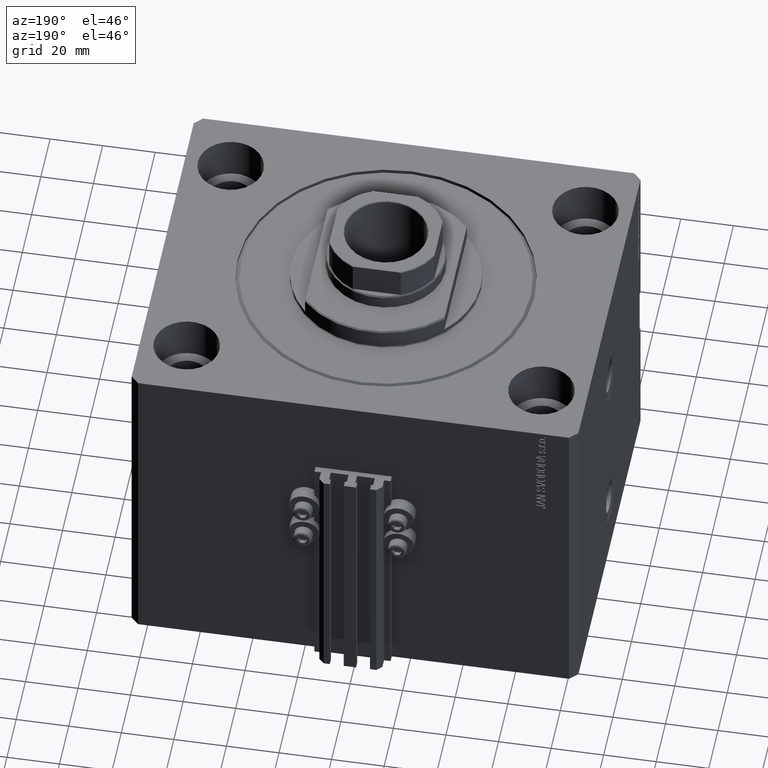
[diagram: clean part render]
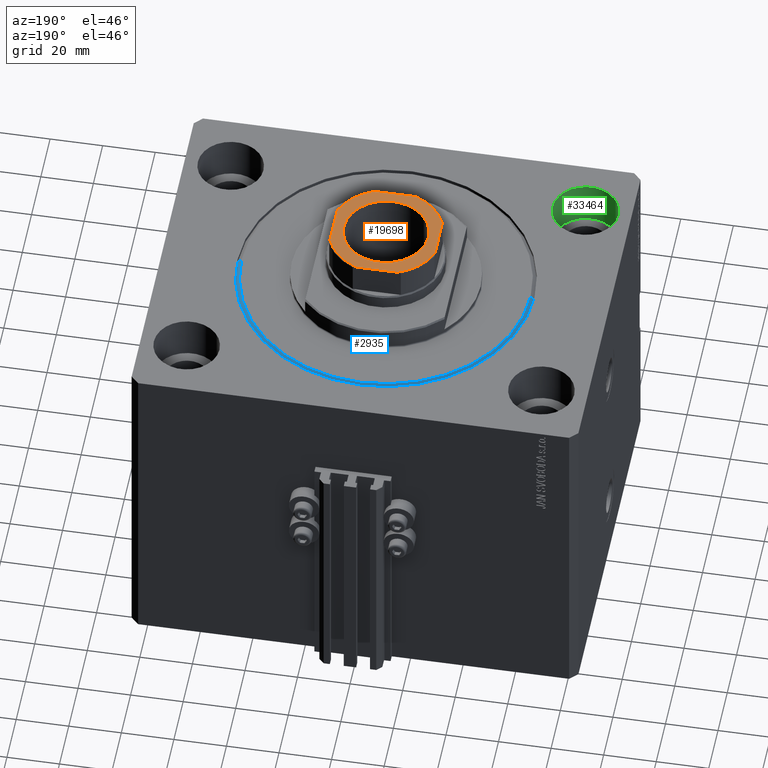
[diagram: same view with three faces highlighted in distinct colors, each labeled with its STEP entity id]
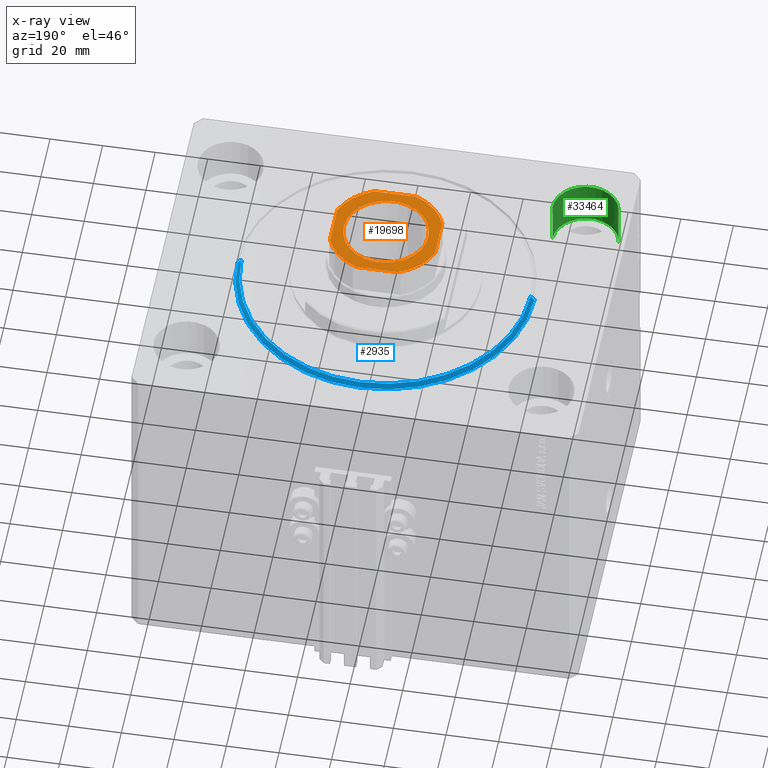
[diagram: x-ray of the same camera — body ghosted, the three highlighted faces saturated]
A machine part, auxiliary view with three faces highlighted in distinct colors.
The next image is the same camera in x-ray (body ghosted, the three faces saturated) — at least one of them is partly hidden behind the body in this view.
Their STEP definitions:

[orange] entity #19698 — the highlighted planar face has unit normal (0, 0, 1).
#475 = CARTESIAN_POINT ( 'NONE',  ( 0.000000000000000000, 0.000000000000000000, 126.1000000000000227 ) ) ;
#1859 = CIRCLE ( 'NONE', #25370, 21.50000000000000000 ) ;
#3235 = VERTEX_POINT ( 'NONE', #3291 ) ;
#3291 = CARTESIAN_POINT ( 'NONE',  ( 16.04999999999997939, 0.000000000000000000, 126.1000000000000227 ) ) ;
#4137 = VERTEX_POINT ( 'NONE', #42948 ) ;
#4202 = CARTESIAN_POINT ( 'NONE',  ( 7.889866919029745240, -20.00000000000000000, 126.1000000000000227 ) ) ;
#4549 = AXIS2_PLACEMENT_3D ( 'NONE', #20784, #35237, #47212 ) ;
#5005 = EDGE_LOOP ( 'NONE', ( #14764, #44178 ) ) ;
#5249 = CIRCLE ( 'NONE', #38891, 21.50000000000000000 ) ;
#6143 = DIRECTION ( 'NONE',  ( 8.673617379884035472E-17, -1.000000000000000000, 0.000000000000000000 ) ) ;
#6745 = AXIS2_PLACEMENT_3D ( 'NONE', #7201, #23104, #22863 ) ;
#6831 = AXIS2_PLACEMENT_3D ( 'NONE', #43258, #9969, #32505 ) ;
#6859 = ORIENTED_EDGE ( 'NONE', *, *, #39950, .T. ) ;
#7201 = CARTESIAN_POINT ( 'NONE',  ( 0.000000000000000000, 0.000000000000000000, 126.1000000000000227 ) ) ;
#7834 = DIRECTION ( 'NONE',  ( -0.000000000000000000, 0.000000000000000000, 1.000000000000000000 ) ) ;
#8627 = ORIENTED_EDGE ( 'NONE', *, *, #17363, .T. ) ;
#8950 = AXIS2_PLACEMENT_3D ( 'NONE', #24831, #44375, #48055 ) ;
#9969 = DIRECTION ( 'NONE',  ( 0.000000000000000000, -0.000000000000000000, -1.000000000000000000 ) ) ;
#10262 = EDGE_CURVE ( 'NONE', #37797, #30513, #1859, .T. ) ;
#10423 = CARTESIAN_POINT ( 'NONE',  ( 19.99999999999999645, 20.00000000000000000, 126.1000000000000227 ) ) ;
#10876 = DIRECTION ( 'NONE',  ( -1.000000000000000000, -0.000000000000000000, -0.000000000000000000 ) ) ;
#10909 = LINE ( 'NONE', #10423, #17639 ) ;
#11455 = CIRCLE ( 'NONE', #6745, 21.50000000000000000 ) ;
#12394 = ORIENTED_EDGE ( 'NONE', *, *, #36701, .T. ) ;
#12779 = CARTESIAN_POINT ( 'NONE',  ( 20.00000000000000000, 7.889866919029748793, 126.1000000000000227 ) ) ;
#12867 = VERTEX_POINT ( 'NONE', #12779 ) ;
#13190 = CARTESIAN_POINT ( 'NONE',  ( -16.04999999999997939, 1.965558112631499443E-15, 126.1000000000000227 ) ) ;
#13303 = CARTESIAN_POINT ( 'NONE',  ( 20.00000000000000000, -7.889866919029739911, 126.1000000000000227 ) ) ;
#13672 = FACE_OUTER_BOUND ( 'NONE', #35308, .T. ) ;
#13844 = ORIENTED_EDGE ( 'NONE', *, *, #44944, .T. ) ;
#14165 = CARTESIAN_POINT ( 'NONE',  ( -20.00000000000000355, 7.889866919029741688, 126.1000000000000227 ) ) ;
#14625 = ORIENTED_EDGE ( 'NONE', *, *, #26608, .T. ) ;
#14764 = ORIENTED_EDGE ( 'NONE', *, *, #38706, .T. ) ;
#15182 = DIRECTION ( 'NONE',  ( 1.000000000000000000, 0.000000000000000000, 0.000000000000000000 ) ) ;
#16929 = CARTESIAN_POINT ( 'NONE',  ( -20.00000000000000355, 20.00000000000000000, 126.1000000000000227 ) ) ;
#17173 = CARTESIAN_POINT ( 'NONE',  ( 0.000000000000000000, 0.000000000000000000, 126.1000000000000227 ) ) ;
#17363 = EDGE_CURVE ( 'NONE', #27478, #42691, #5249, .T. ) ;
#17639 = VECTOR ( 'NONE', #22166, 1000.000000000000000 ) ;
#17641 = ORIENTED_EDGE ( 'NONE', *, *, #10262, .T. ) ;
#17796 = EDGE_CURVE ( 'NONE', #32051, #3235, #25614, .T. ) ;
#17881 = ORIENTED_EDGE ( 'NONE', *, *, #36024, .T. ) ;
#19698 = ADVANCED_FACE ( 'NONE', ( #21031, #13672 ), #24222, .T. ) ;
#20041 = AXIS2_PLACEMENT_3D ( 'NONE', #33462, #33930, #41526 ) ;
#20784 = CARTESIAN_POINT ( 'NONE',  ( 0.000000000000000000, 0.000000000000000000, 126.1000000000000227 ) ) ;
#21031 = FACE_BOUND ( 'NONE', #5005, .T. ) ;
#22166 = DIRECTION ( 'NONE',  ( -1.734723475976807094E-16, 1.000000000000000000, -0.000000000000000000 ) ) ;
#22863 = DIRECTION ( 'NONE',  ( 1.000000000000000000, 0.000000000000000000, 0.000000000000000000 ) ) ;
#23104 = DIRECTION ( 'NONE',  ( -0.000000000000000000, 0.000000000000000000, 1.000000000000000000 ) ) ;
#23264 = CARTESIAN_POINT ( 'NONE',  ( -7.889866919029745240, 20.00000000000000000, 126.1000000000000227 ) ) ;
#24025 = DIRECTION ( 'NONE',  ( 1.000000000000000000, 0.000000000000000000, 0.000000000000000000 ) ) ;
#24222 = PLANE ( 'NONE',  #4549 ) ;
#24831 = CARTESIAN_POINT ( 'NONE',  ( 0.000000000000000000, 0.000000000000000000, 126.1000000000000227 ) ) ;
#25370 = AXIS2_PLACEMENT_3D ( 'NONE', #17173, #31612, #24025 ) ;
#25614 = CIRCLE ( 'NONE', #6831, 16.04999999999997939 ) ;
#26608 = EDGE_CURVE ( 'NONE', #4137, #27478, #37303, .T. ) ;
#26950 = CIRCLE ( 'NONE', #8950, 21.50000000000000000 ) ;
#27478 = VERTEX_POINT ( 'NONE', #23264 ) ;
#28203 = DIRECTION ( 'NONE',  ( 1.000000000000000000, 0.000000000000000000, 0.000000000000000000 ) ) ;
#28939 = VECTOR ( 'NONE', #10876, 1000.000000000000000 ) ;
#29620 = VECTOR ( 'NONE', #6143, 1000.000000000000000 ) ;
#30513 = VERTEX_POINT ( 'NONE', #13303 ) ;
#31612 = DIRECTION ( 'NONE',  ( -0.000000000000000000, 0.000000000000000000, 1.000000000000000000 ) ) ;
#32051 = VERTEX_POINT ( 'NONE', #13190 ) ;
#32505 = DIRECTION ( 'NONE',  ( 1.000000000000000000, 0.000000000000000000, 0.000000000000000000 ) ) ;
#32842 = LINE ( 'NONE', #16929, #29620 ) ;
#33398 = CARTESIAN_POINT ( 'NONE',  ( -20.00000000000000355, 20.00000000000000000, 126.1000000000000227 ) ) ;
#33462 = CARTESIAN_POINT ( 'NONE',  ( 0.000000000000000000, 0.000000000000000000, 126.1000000000000227 ) ) ;
#33930 = DIRECTION ( 'NONE',  ( 0.000000000000000000, -0.000000000000000000, -1.000000000000000000 ) ) ;
#35237 = DIRECTION ( 'NONE',  ( -0.000000000000000000, 0.000000000000000000, 1.000000000000000000 ) ) ;
#35308 = EDGE_LOOP ( 'NONE', ( #13844, #17881, #44086, #17641, #12394, #6859, #14625, #8627 ) ) ;
#36024 = EDGE_CURVE ( 'NONE', #41063, #39802, #26950, .T. ) ;
#36701 = EDGE_CURVE ( 'NONE', #30513, #12867, #10909, .T. ) ;
#37303 = LINE ( 'NONE', #33398, #28939 ) ;
#37559 = CARTESIAN_POINT ( 'NONE',  ( -7.889866919029745240, -20.00000000000000000, 126.1000000000000227 ) ) ;
#37797 = VERTEX_POINT ( 'NONE', #4202 ) ;
#37983 = CARTESIAN_POINT ( 'NONE',  ( -20.00000000000000355, -7.889866919029736358, 126.1000000000000227 ) ) ;
#38706 = EDGE_CURVE ( 'NONE', #3235, #32051, #48179, .T. ) ;
#38891 = AXIS2_PLACEMENT_3D ( 'NONE', #475, #7834, #15182 ) ;
#39802 = VERTEX_POINT ( 'NONE', #37559 ) ;
#39950 = EDGE_CURVE ( 'NONE', #12867, #4137, #11455, .T. ) ;
#41063 = VERTEX_POINT ( 'NONE', #37983 ) ;
#41386 = VECTOR ( 'NONE', #28203, 1000.000000000000000 ) ;
#41526 = DIRECTION ( 'NONE',  ( 1.000000000000000000, 0.000000000000000000, 0.000000000000000000 ) ) ;
#42635 = CARTESIAN_POINT ( 'NONE',  ( -20.00000000000000000, -20.00000000000000000, 126.1000000000000227 ) ) ;
#42691 = VERTEX_POINT ( 'NONE', #14165 ) ;
#42948 = CARTESIAN_POINT ( 'NONE',  ( 7.889866919029743464, 20.00000000000000000, 126.1000000000000227 ) ) ;
#43258 = CARTESIAN_POINT ( 'NONE',  ( 0.000000000000000000, 0.000000000000000000, 126.1000000000000227 ) ) ;
#44086 = ORIENTED_EDGE ( 'NONE', *, *, #45971, .T. ) ;
#44178 = ORIENTED_EDGE ( 'NONE', *, *, #17796, .T. ) ;
#44375 = DIRECTION ( 'NONE',  ( -0.000000000000000000, 0.000000000000000000, 1.000000000000000000 ) ) ;
#44944 = EDGE_CURVE ( 'NONE', #42691, #41063, #32842, .T. ) ;
#45971 = EDGE_CURVE ( 'NONE', #39802, #37797, #46802, .T. ) ;
#46802 = LINE ( 'NONE', #42635, #41386 ) ;
#47212 = DIRECTION ( 'NONE',  ( 1.000000000000000000, 0.000000000000000000, 0.000000000000000000 ) ) ;
#48055 = DIRECTION ( 'NONE',  ( 1.000000000000000000, 0.000000000000000000, 0.000000000000000000 ) ) ;
#48179 = CIRCLE ( 'NONE', #20041, 16.04999999999997939 ) ;

[blue] entity #2935 — the highlighted conical surface has half-angle 45 deg.
#2758 = ORIENTED_EDGE ( 'NONE', *, *, #7363, .T. ) ;
#2935 = ADVANCED_FACE ( 'NONE', ( #44484 ), #39595, .T. ) ;
#3439 = DIRECTION ( 'NONE',  ( -0.7071067811865459074, 8.659560562354911904E-17, 0.7071067811865491270 ) ) ;
#4049 = CARTESIAN_POINT ( 'NONE',  ( 0.000000000000000000, 0.000000000000000000, 0.000000000000000000 ) ) ;
#6179 = DIRECTION ( 'NONE',  ( -0.000000000000000000, -0.000000000000000000, 1.000000000000000000 ) ) ;
#6872 = VERTEX_POINT ( 'NONE', #11157 ) ;
#7356 = LINE ( 'NONE', #36543, #11299 ) ;
#7363 = EDGE_CURVE ( 'NONE', #38570, #32968, #7356, .T. ) ;
#7490 = DIRECTION ( 'NONE',  ( 1.000000000000000000, 0.000000000000000000, 0.000000000000000000 ) ) ;
#11157 = CARTESIAN_POINT ( 'NONE',  ( 55.00000000000002132, 0.000000000000000000, 0.000000000000000000 ) ) ;
#11299 = VECTOR ( 'NONE', #3439, 1000.000000000000000 ) ;
#12871 = LINE ( 'NONE', #43658, #34964 ) ;
#14934 = EDGE_LOOP ( 'NONE', ( #41822, #2758, #18128, #18347 ) ) ;
#16083 = CARTESIAN_POINT ( 'NONE',  ( 56.50000000000000711, 6.919254415182546126E-15, 1.499999999999994449 ) ) ;
#16506 = EDGE_CURVE ( 'NONE', #38570, #6872, #21673, .T. ) ;
#17585 = DIRECTION ( 'NONE',  ( -0.000000000000000000, -0.000000000000000000, 1.000000000000000000 ) ) ;
#18128 = ORIENTED_EDGE ( 'NONE', *, *, #26936, .F. ) ;
#18347 = ORIENTED_EDGE ( 'NONE', *, *, #40911, .F. ) ;
#20052 = AXIS2_PLACEMENT_3D ( 'NONE', #33007, #17585, #21976 ) ;
#21673 = CIRCLE ( 'NONE', #41995, 55.00000000000002132 ) ;
#21976 = DIRECTION ( 'NONE',  ( 1.000000000000000000, 0.000000000000000000, 0.000000000000000000 ) ) ;
#22384 = VERTEX_POINT ( 'NONE', #16083 ) ;
#26936 = EDGE_CURVE ( 'NONE', #22384, #32968, #46891, .T. ) ;
#28717 = DIRECTION ( 'NONE',  ( 1.000000000000000000, 0.000000000000000000, 0.000000000000000000 ) ) ;
#32325 = CARTESIAN_POINT ( 'NONE',  ( -56.50000000000000711, 0.000000000000000000, 1.499999999999994449 ) ) ;
#32411 = DIRECTION ( 'NONE',  ( 0.7071067811865459074, 0.000000000000000000, 0.7071067811865491270 ) ) ;
#32968 = VERTEX_POINT ( 'NONE', #32325 ) ;
#33007 = CARTESIAN_POINT ( 'NONE',  ( 0.000000000000000000, 0.000000000000000000, 1.499999999999994449 ) ) ;
#34964 = VECTOR ( 'NONE', #32411, 1000.000000000000000 ) ;
#36543 = CARTESIAN_POINT ( 'NONE',  ( -56.50000000000000711, 6.919254415182546126E-15, 1.499999999999994449 ) ) ;
#36728 = AXIS2_PLACEMENT_3D ( 'NONE', #39723, #6179, #28717 ) ;
#38400 = CARTESIAN_POINT ( 'NONE',  ( -55.00000000000002132, 6.827405905246496343E-15, 0.000000000000000000 ) ) ;
#38570 = VERTEX_POINT ( 'NONE', #38400 ) ;
#39595 = CONICAL_SURFACE ( 'NONE', #20052, 56.50000000000000711, 0.7853981633974460586 ) ;
#39723 = CARTESIAN_POINT ( 'NONE',  ( 0.000000000000000000, 0.000000000000000000, 1.499999999999994449 ) ) ;
#40911 = EDGE_CURVE ( 'NONE', #6872, #22384, #12871, .T. ) ;
#41822 = ORIENTED_EDGE ( 'NONE', *, *, #16506, .F. ) ;
#41995 = AXIS2_PLACEMENT_3D ( 'NONE', #4049, #44941, #7490 ) ;
#43658 = CARTESIAN_POINT ( 'NONE',  ( 56.50000000000000711, 0.000000000000000000, 1.499999999999994449 ) ) ;
#44484 = FACE_OUTER_BOUND ( 'NONE', #14934, .T. ) ;
#44941 = DIRECTION ( 'NONE',  ( -0.000000000000000000, -0.000000000000000000, -1.000000000000000000 ) ) ;
#46891 = CIRCLE ( 'NONE', #36728, 56.50000000000000711 ) ;

[green] entity #33464 — the highlighted cylindrical surface (edge-blend (fillet) strip) has radius 12.5 mm, axis along (0, 0, 1).
#3240 = DIRECTION ( 'NONE',  ( 0.000000000000000000, 0.000000000000000000, 1.000000000000000000 ) ) ;
#3311 = AXIS2_PLACEMENT_3D ( 'NONE', #30012, #45182, #37363 ) ;
#4525 = CYLINDRICAL_SURFACE ( 'NONE', #3311, 12.49999999999999645 ) ;
#6229 = EDGE_CURVE ( 'NONE', #41723, #25654, #18629, .T. ) ;
#8413 = EDGE_LOOP ( 'NONE', ( #18357, #11593, #39689, #25461 ) ) ;
#10129 = CIRCLE ( 'NONE', #17926, 12.49999999999999645 ) ;
#10951 = CARTESIAN_POINT ( 'NONE',  ( -80.00000000000000000, -47.50000000000000000, -17.00000000000000000 ) ) ;
#11593 = ORIENTED_EDGE ( 'NONE', *, *, #6229, .T. ) ;
#12607 = CARTESIAN_POINT ( 'NONE',  ( -67.50000000000000000, -47.50000000000000000, -17.00000000000000000 ) ) ;
#16478 = CARTESIAN_POINT ( 'NONE',  ( -55.00000000000000711, -47.50000000000000000, -17.00000000000000000 ) ) ;
#17060 = VECTOR ( 'NONE', #22190, 1000.000000000000000 ) ;
#17926 = AXIS2_PLACEMENT_3D ( 'NONE', #12607, #38329, #45908 ) ;
#18196 = DIRECTION ( 'NONE',  ( 1.000000000000000000, 0.000000000000000000, 0.000000000000000000 ) ) ;
#18357 = ORIENTED_EDGE ( 'NONE', *, *, #25694, .F. ) ;
#18629 = LINE ( 'NONE', #33330, #30822 ) ;
#18721 = EDGE_CURVE ( 'NONE', #26080, #39567, #30266, .T. ) ;
#19376 = AXIS2_PLACEMENT_3D ( 'NONE', #29697, #3240, #18196 ) ;
#22190 = DIRECTION ( 'NONE',  ( -0.000000000000000000, -0.000000000000000000, 1.000000000000000000 ) ) ;
#22571 = EDGE_CURVE ( 'NONE', #25654, #39567, #29669, .T. ) ;
#24992 = CARTESIAN_POINT ( 'NONE',  ( -55.00000000000000711, -47.50000000000000000, 0.000000000000000000 ) ) ;
#25461 = ORIENTED_EDGE ( 'NONE', *, *, #18721, .F. ) ;
#25654 = VERTEX_POINT ( 'NONE', #29297 ) ;
#25694 = EDGE_CURVE ( 'NONE', #41723, #26080, #10129, .T. ) ;
#26080 = VERTEX_POINT ( 'NONE', #16478 ) ;
#29297 = CARTESIAN_POINT ( 'NONE',  ( -80.00000000000000000, -47.50000000000000000, 0.000000000000000000 ) ) ;
#29669 = CIRCLE ( 'NONE', #19376, 12.49999999999999645 ) ;
#29697 = CARTESIAN_POINT ( 'NONE',  ( -67.50000000000000000, -47.50000000000000000, 0.000000000000000000 ) ) ;
#30012 = CARTESIAN_POINT ( 'NONE',  ( -67.50000000000000000, -47.50000000000000000, -17.00000000000000000 ) ) ;
#30266 = LINE ( 'NONE', #33460, #17060 ) ;
#30374 = DIRECTION ( 'NONE',  ( -0.000000000000000000, -0.000000000000000000, 1.000000000000000000 ) ) ;
#30512 = FACE_OUTER_BOUND ( 'NONE', #8413, .T. ) ;
#30822 = VECTOR ( 'NONE', #30374, 1000.000000000000000 ) ;
#33330 = CARTESIAN_POINT ( 'NONE',  ( -80.00000000000000000, -47.50000000000000000, -17.00000000000000000 ) ) ;
#33460 = CARTESIAN_POINT ( 'NONE',  ( -55.00000000000000711, -47.50000000000000000, -17.00000000000000000 ) ) ;
#33464 = ADVANCED_FACE ( 'NONE', ( #30512 ), #4525, .F. ) ;
#37363 = DIRECTION ( 'NONE',  ( 1.000000000000000000, 0.000000000000000000, 0.000000000000000000 ) ) ;
#38329 = DIRECTION ( 'NONE',  ( 0.000000000000000000, 0.000000000000000000, 1.000000000000000000 ) ) ;
#39567 = VERTEX_POINT ( 'NONE', #24992 ) ;
#39689 = ORIENTED_EDGE ( 'NONE', *, *, #22571, .T. ) ;
#41723 = VERTEX_POINT ( 'NONE', #10951 ) ;
#45182 = DIRECTION ( 'NONE',  ( -0.000000000000000000, -0.000000000000000000, 1.000000000000000000 ) ) ;
#45908 = DIRECTION ( 'NONE',  ( 1.000000000000000000, 0.000000000000000000, 0.000000000000000000 ) ) ;